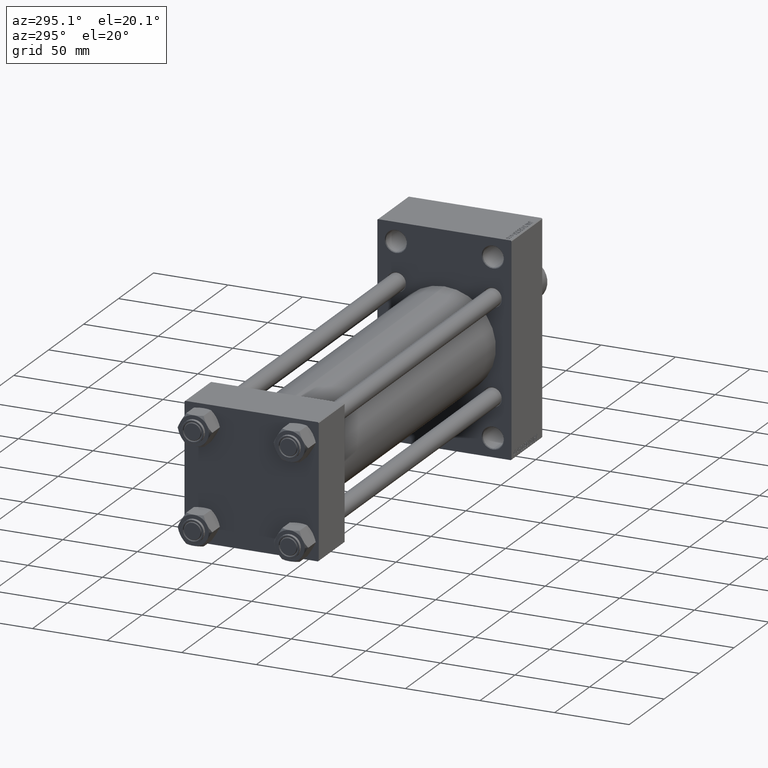
[diagram: clean part render]
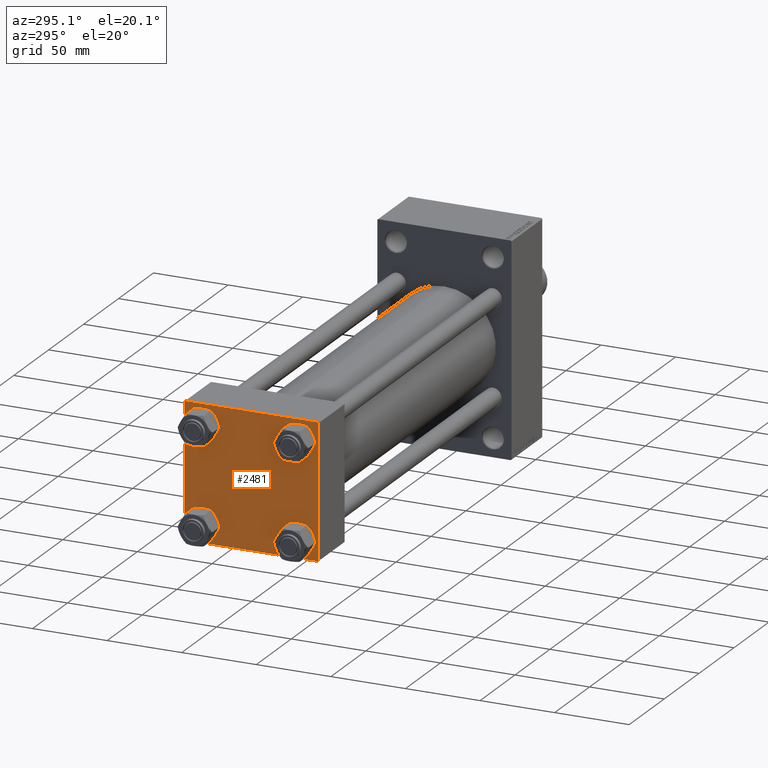
[diagram: same view with one face highlighted and labeled with its STEP entity id]
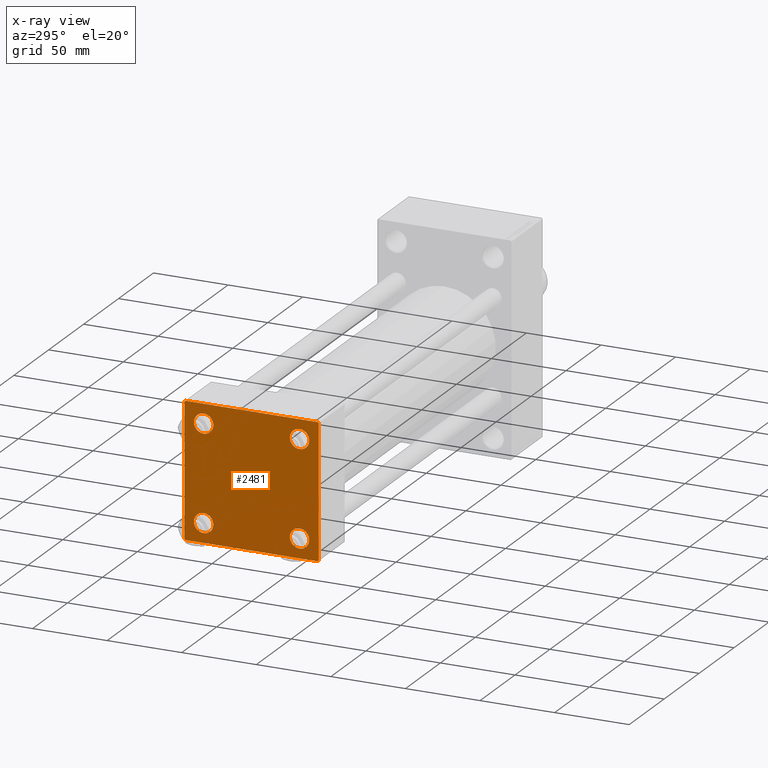
[diagram: x-ray of the same camera — body ghosted, the highlighted face saturated]
A machine part, auxiliary view. The second image highlights one B-rep face of the part: STEP entity #2481.
The next image is the same camera in x-ray: the body ghosted, the highlighted face saturated — about 0% of this face is hidden behind the body in this view.
In plain terms, the highlighted planar face has unit normal (-1, 0, 0).
Its self-contained STEP definition (entity closure, byte-faithful):
#56 = ORIENTED_EDGE ( 'NONE', *, *, #5607, .T. ) ;
#242 = DIRECTION ( 'NONE',  ( 1.000000000000000000, -0.000000000000000000, 0.000000000000000000 ) ) ;
#370 = DIRECTION ( 'NONE',  ( 0.000000000000000000, -1.000000000000000000, -1.541976423090495387E-16 ) ) ;
#527 = VERTEX_POINT ( 'NONE', #32482 ) ;
#659 = EDGE_CURVE ( 'NONE', #2950, #38542, #8349, .T. ) ;
#680 = AXIS2_PLACEMENT_3D ( 'NONE', #24327, #42920, #9880 ) ;
#726 = AXIS2_PLACEMENT_3D ( 'NONE', #29376, #242, #14914 ) ;
#892 = DIRECTION ( 'NONE',  ( 0.000000000000000000, 0.7071067811865474617, -0.7071067811865474617 ) ) ;
#908 = CIRCLE ( 'NONE', #40931, 6.499999999999977796 ) ;
#1359 = CIRCLE ( 'NONE', #22915, 6.499999999999977796 ) ;
#1410 = CARTESIAN_POINT ( 'NONE',  ( 0.000000000000000000, 44.49999999999998579, -44.99999999999998579 ) ) ;
#1485 = EDGE_LOOP ( 'NONE', ( #2550, #9845 ) ) ;
#1605 = DIRECTION ( 'NONE',  ( 0.000000000000000000, 0.000000000000000000, 1.000000000000000000 ) ) ;
#2328 = EDGE_LOOP ( 'NONE', ( #37283, #45362 ) ) ;
#2339 = VECTOR ( 'NONE', #19813, 1000.000000000000000 ) ;
#2481 = ADVANCED_FACE ( 'NONE', ( #24807, #42689, #17555, #27957, #20952 ), #46543, .T. ) ;
#2550 = ORIENTED_EDGE ( 'NONE', *, *, #40197, .T. ) ;
#2950 = VERTEX_POINT ( 'NONE', #44062 ) ;
#3775 = CIRCLE ( 'NONE', #726, 6.499999999999977796 ) ;
#4278 = VECTOR ( 'NONE', #370, 1000.000000000000000 ) ;
#5129 = CARTESIAN_POINT ( 'NONE',  ( 0.000000000000000000, 44.99999999999998579, 45.00000000000001421 ) ) ;
#5607 = EDGE_CURVE ( 'NONE', #38542, #20725, #27778, .T. ) ;
#7067 = ORIENTED_EDGE ( 'NONE', *, *, #13555, .F. ) ;
#7208 = LINE ( 'NONE', #14191, #33062 ) ;
#8145 = CARTESIAN_POINT ( 'NONE',  ( 0.000000000000000000, -32.14999999999997726, 38.65000000000003411 ) ) ;
#8349 = LINE ( 'NONE', #23523, #9190 ) ;
#8759 = DIRECTION ( 'NONE',  ( 0.000000000000000000, -1.000000000000000000, -1.541976423090495633E-16 ) ) ;
#8876 = CARTESIAN_POINT ( 'NONE',  ( 0.000000000000000000, 32.14999999999999147, 38.64999999999999147 ) ) ;
#9190 = VECTOR ( 'NONE', #892, 1000.000000000000114 ) ;
#9435 = ORIENTED_EDGE ( 'NONE', *, *, #9876, .T. ) ;
#9670 = VERTEX_POINT ( 'NONE', #8145 ) ;
#9845 = ORIENTED_EDGE ( 'NONE', *, *, #37228, .T. ) ;
#9876 = EDGE_CURVE ( 'NONE', #45786, #37068, #20147, .T. ) ;
#9880 = DIRECTION ( 'NONE',  ( -0.000000000000000000, 0.000000000000000000, 1.000000000000000000 ) ) ;
#10227 = DIRECTION ( 'NONE',  ( 0.000000000000000000, 0.000000000000000000, 1.000000000000000000 ) ) ;
#10433 = ORIENTED_EDGE ( 'NONE', *, *, #43036, .T. ) ;
#10799 = VECTOR ( 'NONE', #8759, 1000.000000000000000 ) ;
#10942 = CARTESIAN_POINT ( 'NONE',  ( 0.000000000000000000, -32.14999999999997726, 32.15000000000001279 ) ) ;
#11385 = CIRCLE ( 'NONE', #19851, 6.499999999999977796 ) ;
#11896 = LINE ( 'NONE', #33588, #19073 ) ;
#12687 = CARTESIAN_POINT ( 'NONE',  ( 0.000000000000000000, -32.14999999999997726, -32.15000000000001279 ) ) ;
#13093 = CIRCLE ( 'NONE', #40051, 6.500000000000019540 ) ;
#13194 = CARTESIAN_POINT ( 'NONE',  ( -0.000000000000000000, -44.75000000000029843, 44.74999999999967315 ) ) ;
#13555 = EDGE_CURVE ( 'NONE', #2950, #28792, #47645, .T. ) ;
#13625 = DIRECTION ( 'NONE',  ( 0.000000000000000000, 0.000000000000000000, 1.000000000000000000 ) ) ;
#13652 = LINE ( 'NONE', #13194, #35840 ) ;
#13968 = VERTEX_POINT ( 'NONE', #30110 ) ;
#14134 = CARTESIAN_POINT ( 'NONE',  ( 0.000000000000000000, -44.49999999999995737, -45.00000000000000000 ) ) ;
#14191 = CARTESIAN_POINT ( 'NONE',  ( 0.000000000000000000, 44.74999999999998579, -44.74999999999998579 ) ) ;
#14435 = DIRECTION ( 'NONE',  ( 1.000000000000000000, -0.000000000000000000, 0.000000000000000000 ) ) ;
#14914 = DIRECTION ( 'NONE',  ( 0.000000000000000000, 0.000000000000000000, 1.000000000000000000 ) ) ;
#15965 = CARTESIAN_POINT ( 'NONE',  ( 0.000000000000000000, -32.14999999999997726, -38.64999999999999147 ) ) ;
#16740 = CARTESIAN_POINT ( 'NONE',  ( 0.000000000000000000, 32.14999999999999147, -32.15000000000000568 ) ) ;
#17126 = CIRCLE ( 'NONE', #40255, 6.499999999999977796 ) ;
#17209 = VERTEX_POINT ( 'NONE', #37565 ) ;
#17368 = EDGE_CURVE ( 'NONE', #527, #28792, #13652, .T. ) ;
#17555 = FACE_BOUND ( 'NONE', #45061, .T. ) ;
#17635 = AXIS2_PLACEMENT_3D ( 'NONE', #19803, #30910, #45654 ) ;
#17650 = EDGE_CURVE ( 'NONE', #527, #25339, #34854, .T. ) ;
#17757 = VERTEX_POINT ( 'NONE', #30644 ) ;
#19073 = VECTOR ( 'NONE', #22258, 1000.000000000000114 ) ;
#19356 = ORIENTED_EDGE ( 'NONE', *, *, #23197, .T. ) ;
#19803 = CARTESIAN_POINT ( 'NONE',  ( 0.000000000000000000, -32.14999999999997726, 32.15000000000001279 ) ) ;
#19813 = DIRECTION ( 'NONE',  ( 0.000000000000000000, 0.000000000000000000, -1.000000000000000000 ) ) ;
#19851 = AXIS2_PLACEMENT_3D ( 'NONE', #16740, #27137, #1605 ) ;
#20147 = CIRCLE ( 'NONE', #24787, 6.499999999999977796 ) ;
#20219 = EDGE_LOOP ( 'NONE', ( #19356, #9435 ) ) ;
#20725 = VERTEX_POINT ( 'NONE', #43120 ) ;
#20952 = FACE_OUTER_BOUND ( 'NONE', #37880, .T. ) ;
#22047 = CARTESIAN_POINT ( 'NONE',  ( 0.000000000000000000, 44.99999999999998579, 45.00000000000001421 ) ) ;
#22258 = DIRECTION ( 'NONE',  ( 0.000000000000000000, -0.7071067811865474617, 0.7071067811865474617 ) ) ;
#22915 = AXIS2_PLACEMENT_3D ( 'NONE', #30218, #27723, #38596 ) ;
#23197 = EDGE_CURVE ( 'NONE', #37068, #45786, #1359, .T. ) ;
#23448 = LINE ( 'NONE', #46133, #10799 ) ;
#23523 = CARTESIAN_POINT ( 'NONE',  ( 0.000000000000000000, 44.74999999999999289, 44.74999999999999289 ) ) ;
#23622 = EDGE_CURVE ( 'NONE', #17757, #28687, #11385, .T. ) ;
#23867 = EDGE_CURVE ( 'NONE', #41313, #25339, #11896, .T. ) ;
#24327 = CARTESIAN_POINT ( 'NONE',  ( 0.000000000000000000, 0.000000000000000000, 0.000000000000000000 ) ) ;
#24431 = ORIENTED_EDGE ( 'NONE', *, *, #23867, .T. ) ;
#24787 = AXIS2_PLACEMENT_3D ( 'NONE', #12687, #27381, #13625 ) ;
#24807 = FACE_BOUND ( 'NONE', #2328, .T. ) ;
#25158 = DIRECTION ( 'NONE',  ( 0.000000000000000000, 0.000000000000000000, 1.000000000000000000 ) ) ;
#25339 = VERTEX_POINT ( 'NONE', #40515 ) ;
#27137 = DIRECTION ( 'NONE',  ( 1.000000000000000000, -0.000000000000000000, 0.000000000000000000 ) ) ;
#27294 = CARTESIAN_POINT ( 'NONE',  ( 0.000000000000000000, 44.99999999999998579, 44.50000000000001421 ) ) ;
#27381 = DIRECTION ( 'NONE',  ( 1.000000000000000000, -0.000000000000000000, 0.000000000000000000 ) ) ;
#27723 = DIRECTION ( 'NONE',  ( 1.000000000000000000, -0.000000000000000000, 0.000000000000000000 ) ) ;
#27778 = LINE ( 'NONE', #5129, #2339 ) ;
#27863 = EDGE_CURVE ( 'NONE', #9670, #13968, #13093, .T. ) ;
#27957 = FACE_BOUND ( 'NONE', #1485, .T. ) ;
#28353 = DIRECTION ( 'NONE',  ( -0.000000000000000000, 0.7071067811865425767, 0.7071067811865524577 ) ) ;
#28687 = VERTEX_POINT ( 'NONE', #36230 ) ;
#28792 = VERTEX_POINT ( 'NONE', #34023 ) ;
#28984 = ORIENTED_EDGE ( 'NONE', *, *, #17650, .F. ) ;
#29132 = DIRECTION ( 'NONE',  ( 0.000000000000000000, 0.000000000000000000, 1.000000000000000000 ) ) ;
#29376 = CARTESIAN_POINT ( 'NONE',  ( 0.000000000000000000, 32.14999999999999147, 32.15000000000000568 ) ) ;
#30110 = CARTESIAN_POINT ( 'NONE',  ( 0.000000000000000000, -32.14999999999997726, 25.64999999999999147 ) ) ;
#30218 = CARTESIAN_POINT ( 'NONE',  ( 0.000000000000000000, -32.14999999999997726, -32.15000000000001279 ) ) ;
#30421 = VECTOR ( 'NONE', #39175, 1000.000000000000000 ) ;
#30644 = CARTESIAN_POINT ( 'NONE',  ( 0.000000000000000000, 32.14999999999999147, -25.65000000000002700 ) ) ;
#30910 = DIRECTION ( 'NONE',  ( 1.000000000000000000, -0.000000000000000000, 0.000000000000000000 ) ) ;
#32482 = CARTESIAN_POINT ( 'NONE',  ( 0.000000000000000000, -45.00000000000000711, 44.49999999999997158 ) ) ;
#32764 = CARTESIAN_POINT ( 'NONE',  ( 0.000000000000000000, 32.14999999999999147, -32.15000000000000568 ) ) ;
#32957 = ORIENTED_EDGE ( 'NONE', *, *, #40918, .T. ) ;
#33062 = VECTOR ( 'NONE', #40000, 1000.000000000000114 ) ;
#33588 = CARTESIAN_POINT ( 'NONE',  ( 0.000000000000000000, -44.74999999999998579, -44.74999999999998579 ) ) ;
#33810 = CIRCLE ( 'NONE', #17635, 6.500000000000019540 ) ;
#34023 = CARTESIAN_POINT ( 'NONE',  ( 0.000000000000000000, -44.49999999999995737, 45.00000000000000000 ) ) ;
#34854 = LINE ( 'NONE', #45954, #30421 ) ;
#35557 = CARTESIAN_POINT ( 'NONE',  ( 0.000000000000000000, 32.14999999999999147, 32.15000000000000568 ) ) ;
#35759 = EDGE_CURVE ( 'NONE', #28687, #17757, #908, .T. ) ;
#35783 = VERTEX_POINT ( 'NONE', #1410 ) ;
#35840 = VECTOR ( 'NONE', #28353, 1000.000000000000114 ) ;
#36230 = CARTESIAN_POINT ( 'NONE',  ( 0.000000000000000000, 32.14999999999999147, -38.64999999999998437 ) ) ;
#37068 = VERTEX_POINT ( 'NONE', #40412 ) ;
#37158 = ORIENTED_EDGE ( 'NONE', *, *, #659, .T. ) ;
#37228 = EDGE_CURVE ( 'NONE', #17209, #39434, #17126, .T. ) ;
#37283 = ORIENTED_EDGE ( 'NONE', *, *, #27863, .T. ) ;
#37565 = CARTESIAN_POINT ( 'NONE',  ( 0.000000000000000000, 32.14999999999999147, 25.65000000000002700 ) ) ;
#37880 = EDGE_LOOP ( 'NONE', ( #56, #32957, #10433, #24431, #28984, #43551, #7067, #37158 ) ) ;
#38542 = VERTEX_POINT ( 'NONE', #27294 ) ;
#38596 = DIRECTION ( 'NONE',  ( 0.000000000000000000, 0.000000000000000000, 1.000000000000000000 ) ) ;
#39165 = DIRECTION ( 'NONE',  ( 1.000000000000000000, -0.000000000000000000, 0.000000000000000000 ) ) ;
#39175 = DIRECTION ( 'NONE',  ( 0.000000000000000000, 7.709882115452476934E-17, -1.000000000000000000 ) ) ;
#39434 = VERTEX_POINT ( 'NONE', #8876 ) ;
#40000 = DIRECTION ( 'NONE',  ( -0.000000000000000000, -0.7071067811865474617, -0.7071067811865474617 ) ) ;
#40051 = AXIS2_PLACEMENT_3D ( 'NONE', #10942, #47145, #25158 ) ;
#40197 = EDGE_CURVE ( 'NONE', #39434, #17209, #3775, .T. ) ;
#40255 = AXIS2_PLACEMENT_3D ( 'NONE', #35557, #39165, #10227 ) ;
#40412 = CARTESIAN_POINT ( 'NONE',  ( 0.000000000000000000, -32.14999999999997726, -25.65000000000003411 ) ) ;
#40515 = CARTESIAN_POINT ( 'NONE',  ( 0.000000000000000000, -45.00000000000000000, -44.49999999999995737 ) ) ;
#40580 = EDGE_CURVE ( 'NONE', #13968, #9670, #33810, .T. ) ;
#40918 = EDGE_CURVE ( 'NONE', #20725, #35783, #7208, .T. ) ;
#40931 = AXIS2_PLACEMENT_3D ( 'NONE', #32764, #14435, #29132 ) ;
#41313 = VERTEX_POINT ( 'NONE', #14134 ) ;
#42689 = FACE_BOUND ( 'NONE', #20219, .T. ) ;
#42920 = DIRECTION ( 'NONE',  ( -1.000000000000000000, 0.000000000000000000, -0.000000000000000000 ) ) ;
#43036 = EDGE_CURVE ( 'NONE', #35783, #41313, #23448, .T. ) ;
#43120 = CARTESIAN_POINT ( 'NONE',  ( 0.000000000000000000, 44.99999999999998579, -44.49999999999995737 ) ) ;
#43551 = ORIENTED_EDGE ( 'NONE', *, *, #17368, .T. ) ;
#44062 = CARTESIAN_POINT ( 'NONE',  ( 0.000000000000000000, 44.49999999999998579, 45.00000000000001421 ) ) ;
#44823 = ORIENTED_EDGE ( 'NONE', *, *, #35759, .T. ) ;
#45061 = EDGE_LOOP ( 'NONE', ( #46258, #44823 ) ) ;
#45362 = ORIENTED_EDGE ( 'NONE', *, *, #40580, .T. ) ;
#45654 = DIRECTION ( 'NONE',  ( 0.000000000000000000, 0.000000000000000000, 1.000000000000000000 ) ) ;
#45786 = VERTEX_POINT ( 'NONE', #15965 ) ;
#45954 = CARTESIAN_POINT ( 'NONE',  ( 0.000000000000000000, -45.00000000000000711, 45.00000000000000000 ) ) ;
#46133 = CARTESIAN_POINT ( 'NONE',  ( 0.000000000000000000, 44.99999999999998579, -44.99999999999998579 ) ) ;
#46258 = ORIENTED_EDGE ( 'NONE', *, *, #23622, .T. ) ;
#46543 = PLANE ( 'NONE',  #680 ) ;
#47145 = DIRECTION ( 'NONE',  ( 1.000000000000000000, -0.000000000000000000, 0.000000000000000000 ) ) ;
#47645 = LINE ( 'NONE', #22047, #4278 ) ;